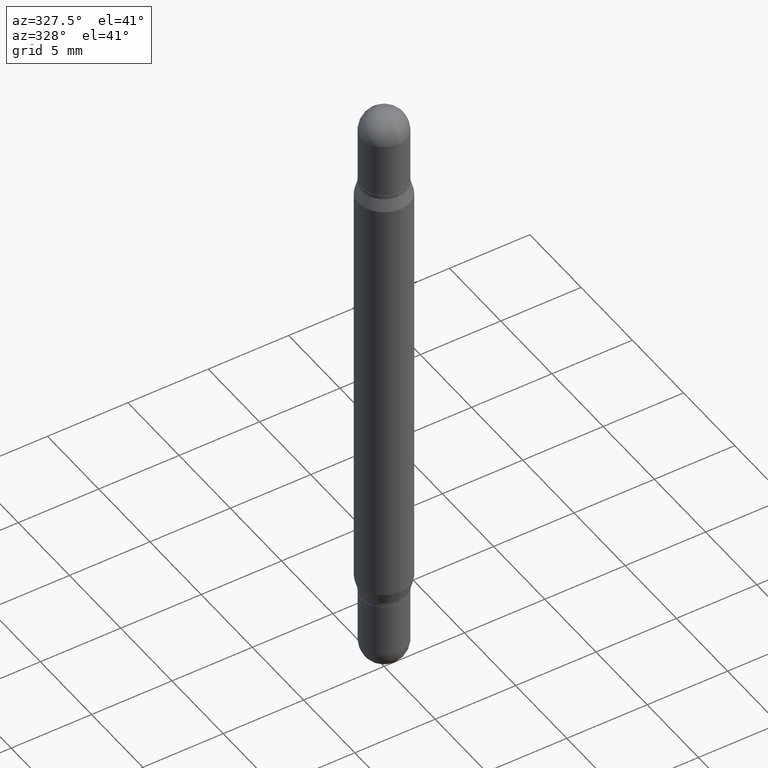
[diagram: clean part render]
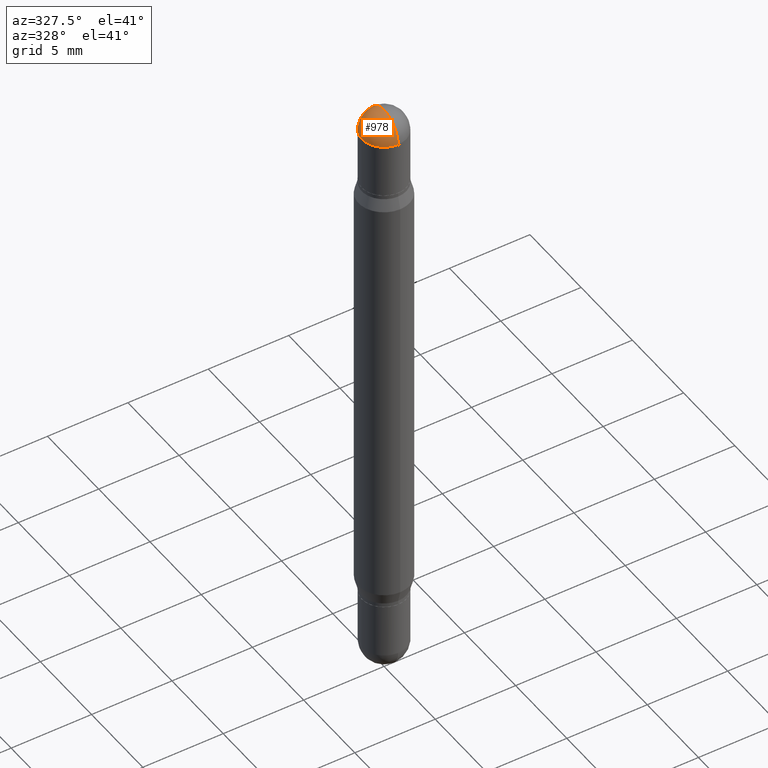
[diagram: same view with one face highlighted and labeled with its STEP entity id]
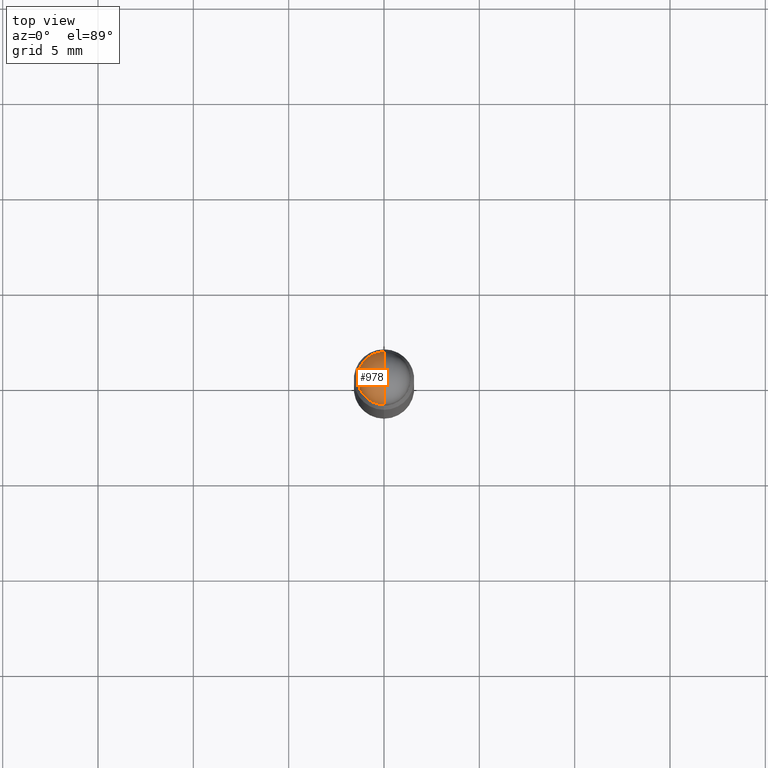
[diagram: same view with one face highlighted and labeled with its STEP entity id]
A machine part, auxiliary view. The second image highlights one B-rep face of the part: STEP entity #978.
A second angle (top view) of the same face is appended — the face is thin or edge-on in the first view.
In plain terms, the highlighted spherical surface has radius 1.3894 mm.
Its self-contained STEP definition (entity closure, byte-faithful):
#24 = AXIS2_PLACEMENT_3D ( 'NONE', #415, #832, #850 ) ;
#50 = VERTEX_POINT ( 'NONE', #360 ) ;
#120 = DIRECTION ( 'NONE',  ( 2.445468806185136597E-29, 3.479614466977828254E-15, 1.000000000000000000 ) ) ;
#195 = CIRCLE ( 'NONE', #969, 0.05470000000000019291 ) ;
#207 = EDGE_CURVE ( 'NONE', #50, #572, #367, .T. ) ;
#250 = DIRECTION ( 'NONE',  ( -6.982962677686265922E-15, -1.000000000000000000, 3.433538383261744671E-15 ) ) ;
#278 = EDGE_CURVE ( 'NONE', #681, #288, #195, .T. ) ;
#288 = VERTEX_POINT ( 'NONE', #1050 ) ;
#360 = CARTESIAN_POINT ( 'NONE',  ( 3.752692404781387717E-16, 0.05469999999999989454, -0.05470000000000056067 ) ) ;
#367 = CIRCLE ( 'NONE', #24, 0.05470000000000000556 ) ;
#409 = DIRECTION ( 'NONE',  ( -1.000000000000000000, 6.860497997771530774E-15, 5.827999781331232286E-31 ) ) ;
#415 = CARTESIAN_POINT ( 'NONE',  ( 3.534436065579377749E-29, -1.992350652426753183E-16, -0.05470000000000037332 ) ) ;
#452 = AXIS2_PLACEMENT_3D ( 'NONE', #746, #409, #760 ) ;
#507 = ORIENTED_EDGE ( 'NONE', *, *, #712, .T. ) ;
#543 = CARTESIAN_POINT ( 'NONE',  ( 3.534436065579377749E-29, -1.992350652426753183E-16, -0.05470000000000037332 ) ) ;
#564 = EDGE_CURVE ( 'NONE', #572, #288, #970, .T. ) ;
#572 = VERTEX_POINT ( 'NONE', #590 ) ;
#590 = CARTESIAN_POINT ( 'NONE',  ( -0.05470000000000000556, -5.414232175515625545E-17, -0.05470000000000037332 ) ) ;
#591 = CARTESIAN_POINT ( 'NONE',  ( 3.529758305977566399E-29, -2.059338832340114475E-16, -0.05470000000000037332 ) ) ;
#592 = CARTESIAN_POINT ( 'NONE',  ( 3.661186569874987869E-29, -1.894838088599157718E-17, -1.792775245842172799E-16 ) ) ;
#618 = FACE_OUTER_BOUND ( 'NONE', #1113, .T. ) ;
#657 = ORIENTED_EDGE ( 'NONE', *, *, #278, .F. ) ;
#681 = VERTEX_POINT ( 'NONE', #592 ) ;
#712 = EDGE_CURVE ( 'NONE', #681, #50, #1054, .T. ) ;
#719 = DIRECTION ( 'NONE',  ( 1.000000000000000000, -6.982962677686268288E-15, 0.000000000000000000 ) ) ;
#746 = CARTESIAN_POINT ( 'NONE',  ( 3.529758305977566399E-29, -2.059338832340114475E-16, -0.05470000000000037332 ) ) ;
#760 = DIRECTION ( 'NONE',  ( -6.860497997771530774E-15, -1.000000000000000000, 0.000000000000000000 ) ) ;
#765 = DIRECTION ( 'NONE',  ( 1.000000000000000000, -6.982962677686265922E-15, -1.566701062080016245E-31 ) ) ;
#780 = DIRECTION ( 'NONE',  ( -1.000000000000000000, 6.982962677686265922E-15, 1.566701062080020624E-31 ) ) ;
#832 = DIRECTION ( 'NONE',  ( 2.445468806185136597E-29, 3.479614466977828254E-15, 1.000000000000000000 ) ) ;
#847 = AXIS2_PLACEMENT_3D ( 'NONE', #543, #120, #719 ) ;
#850 = DIRECTION ( 'NONE',  ( 1.000000000000000000, -6.982962677686268288E-15, 0.000000000000000000 ) ) ;
#895 = ORIENTED_EDGE ( 'NONE', *, *, #207, .T. ) ;
#955 = DIRECTION ( 'NONE',  ( 6.982962677686266711E-15, 1.000000000000000000, 0.000000000000000000 ) ) ;
#969 = AXIS2_PLACEMENT_3D ( 'NONE', #591, #765, #955 ) ;
#970 = CIRCLE ( 'NONE', #847, 0.05470000000000000556 ) ;
#978 = ADVANCED_FACE ( 'NONE', ( #618 ), #1023, .T. ) ;
#1023 = SPHERICAL_SURFACE ( 'NONE', #1085, 0.05470000000000019291 ) ;
#1044 = CARTESIAN_POINT ( 'NONE',  ( 3.529758305977566399E-29, -2.059338832340114475E-16, -0.05470000000000037332 ) ) ;
#1050 = CARTESIAN_POINT ( 'NONE',  ( -3.819680584694040760E-16, -0.05470000000000030393, -0.05470000000000018597 ) ) ;
#1054 = CIRCLE ( 'NONE', #452, 0.05470000000000019291 ) ;
#1072 = ORIENTED_EDGE ( 'NONE', *, *, #564, .T. ) ;
#1085 = AXIS2_PLACEMENT_3D ( 'NONE', #1044, #780, #250 ) ;
#1113 = EDGE_LOOP ( 'NONE', ( #657, #507, #895, #1072 ) ) ;